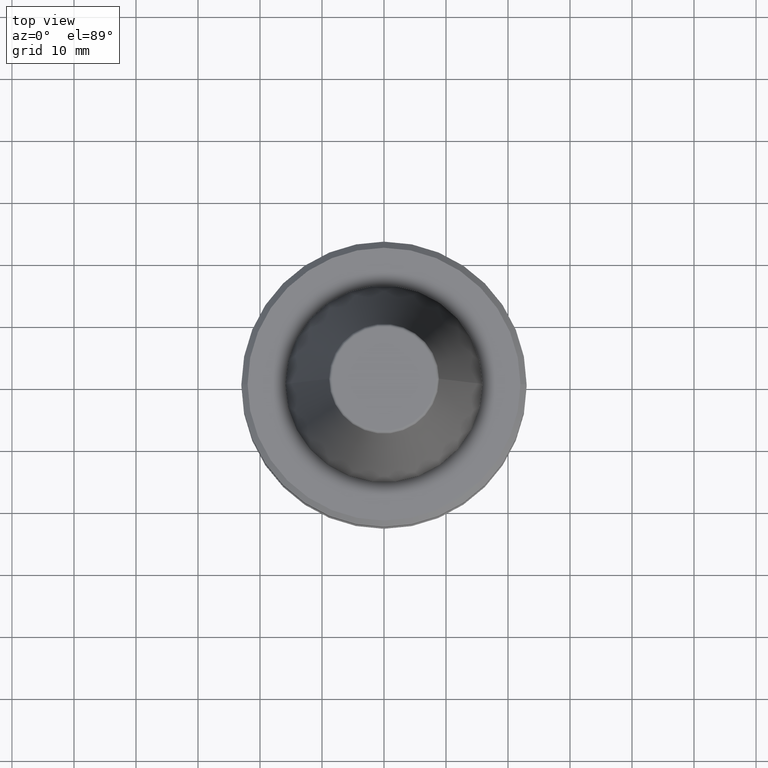
[diagram: clean part render]
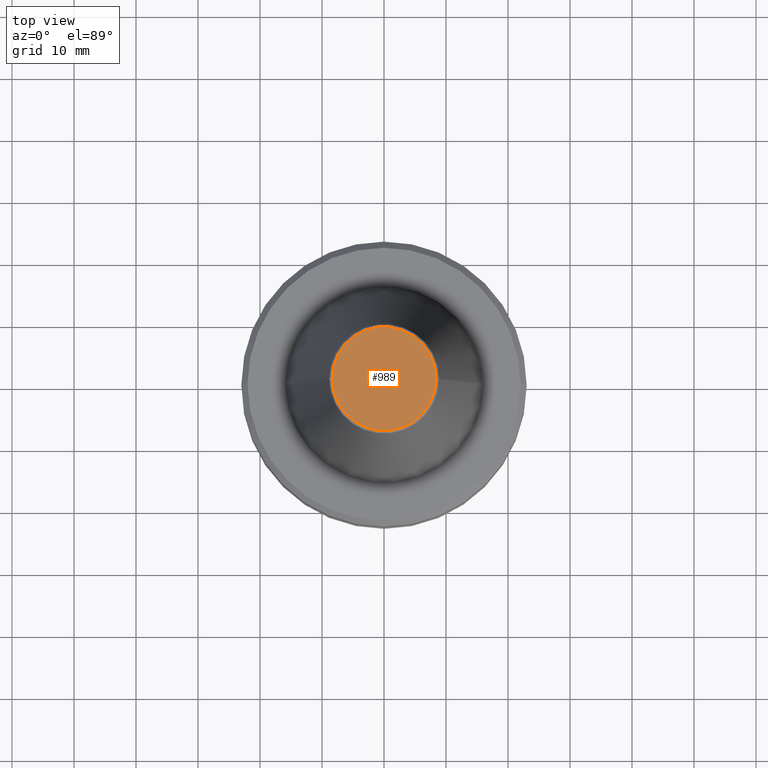
[diagram: same view with one face highlighted and labeled with its STEP entity id]
A machine part, top view. The second image highlights one B-rep face of the part: STEP entity #989.
In plain terms, the highlighted planar face has unit normal (0, 0, -1).
Its self-contained STEP definition (entity closure, byte-faithful):
#6 = PLANE ( 'NONE',  #633 ) ;
#18 = AXIS2_PLACEMENT_3D ( 'NONE', #173, #127, #166 ) ;
#38 = VERTEX_POINT ( 'NONE', #717 ) ;
#46 = CARTESIAN_POINT ( 'NONE',  ( 0.0000000000000000000, 0.0000000000000000000, 48.39999999999969300 ) ) ;
#106 = DIRECTION ( 'NONE',  ( -1.000000000000000000, 0.0000000000000000000, -0.0000000000000000000 ) ) ;
#125 = DIRECTION ( 'NONE',  ( 0.0000000000000000000, 0.0000000000000000000, -1.000000000000000000 ) ) ;
#127 = DIRECTION ( 'NONE',  ( -0.0000000000000000000, -0.0000000000000000000, 1.000000000000000000 ) ) ;
#166 = DIRECTION ( 'NONE',  ( 1.000000000000000000, 0.0000000000000000000, 0.0000000000000000000 ) ) ;
#173 = CARTESIAN_POINT ( 'NONE',  ( 0.0000000000000000000, 0.0000000000000000000, 48.39999999999969300 ) ) ;
#185 = FACE_OUTER_BOUND ( 'NONE', #813, .T. ) ;
#253 = VERTEX_POINT ( 'NONE', #348 ) ;
#348 = CARTESIAN_POINT ( 'NONE',  ( -8.384228427309237100, 1.057067554674900100E-015, 48.39999999999969300 ) ) ;
#370 = EDGE_CURVE ( 'NONE', #253, #38, #553, .T. ) ;
#384 = DIRECTION ( 'NONE',  ( -0.0000000000000000000, -0.0000000000000000000, 1.000000000000000000 ) ) ;
#520 = ORIENTED_EDGE ( 'NONE', *, *, #787, .T. ) ;
#553 = CIRCLE ( 'NONE', #18, 8.384228427309237100 ) ;
#633 = AXIS2_PLACEMENT_3D ( 'NONE', #980, #125, #106 ) ;
#636 = AXIS2_PLACEMENT_3D ( 'NONE', #46, #384, #900 ) ;
#674 = ORIENTED_EDGE ( 'NONE', *, *, #370, .T. ) ;
#717 = CARTESIAN_POINT ( 'NONE',  ( 8.384228427309237100, 0.0000000000000000000, 48.39999999999969300 ) ) ;
#748 = CIRCLE ( 'NONE', #636, 8.384228427309237100 ) ;
#787 = EDGE_CURVE ( 'NONE', #38, #253, #748, .T. ) ;
#813 = EDGE_LOOP ( 'NONE', ( #520, #674 ) ) ;
#900 = DIRECTION ( 'NONE',  ( 1.000000000000000000, 0.0000000000000000000, 0.0000000000000000000 ) ) ;
#980 = CARTESIAN_POINT ( 'NONE',  ( 0.0000000000000000000, 8.384228427309237100, 48.39999999999984900 ) ) ;
#989 = ADVANCED_FACE ( 'NONE', ( #185 ), #6, .F. ) ;